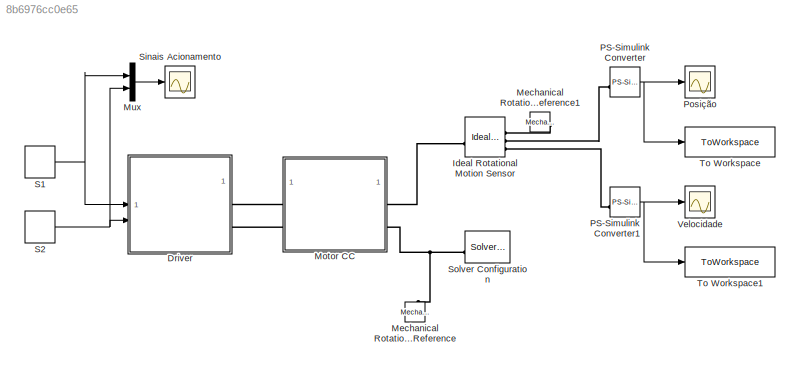
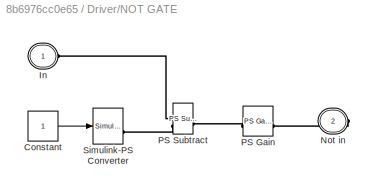
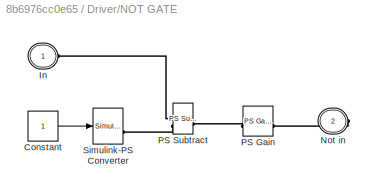
MODEL slx_8b6976cc0e65
KIND model
CONFIG AbsTol = auto
CONFIG EnableMultiTasking = on
CONFIG FixedStep = auto
CONFIG MaxStep = auto
CONFIG MinStep = auto
CONFIG RelTol = 1e-3
CONFIG SampleTimeConstraint = Unconstrained
CONFIG SolverName = ode45
CONFIG StartTime = 0.0
CONFIG StopTime = 10
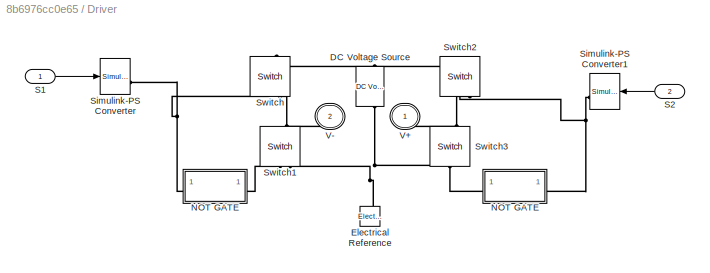
BLOCK [SubSystem] Driver
BLOCK [Reference] Driver/DC Voltage Source  REF=fl_lib/Electrical/Electrical Sources/DC Voltage Source
  NameLocation = right
  SourceBlock = fl_lib/Electrical/Electrical Sources/DC Voltage Source
  SourceType = DC Voltage Source
BLOCK [Reference] Driver/Electrical Reference  REF=fl_lib/Electrical/Electrical Elements/Electrical Reference
  NameLocation = right
  SourceBlock = fl_lib/Electrical/Electrical Elements/Electrical Reference
  SourceType = Electrical Reference
BLOCK [SubSystem] Driver/NOT  GATE
BLOCK [Constant] Driver/NOT  GATE/Constant
BLOCK [PMIOPort] Driver/NOT  GATE/In
  Side = Left
BLOCK [PMIOPort] Driver/NOT  GATE/Not in
  Port = 2
  Side = Right
BLOCK [Reference] Driver/NOT  GATE/PS Gain  REF=fl_ps_legacy_lib/Legacy Physical
Signals/Functions/PS Gain
  SourceBlock = fl_ps_legacy_lib/Legacy Physical\nSignals/Functions/PS Gain
  SourceType = PS Gain
BLOCK [Reference] Driver/NOT  GATE/PS Subtract  REF=fl_ps_legacy_lib/Legacy Physical
Signals/Functions/PS Subtract
  SourceBlock = fl_ps_legacy_lib/Legacy Physical\nSignals/Functions/PS Subtract
  SourceType = PS Subtract
BLOCK [Reference] Driver/NOT  GATE/Simulink-PS Converter  REF=nesl_utility/Simulink-PS
Converter
  SourceBlock = nesl_utility/Simulink-PS\nConverter
  SourceType = Simulink-PS\nConverter
BLOCK [SubSystem] Driver/NOT GATE
BLOCK [Constant] Driver/NOT GATE/Constant
BLOCK [PMIOPort] Driver/NOT GATE/In
  Side = Left
BLOCK [PMIOPort] Driver/NOT GATE/Not in
  Port = 2
  Side = Right
BLOCK [Reference] Driver/NOT GATE/PS Gain  REF=fl_ps_legacy_lib/Legacy Physical
Signals/Functions/PS Gain
  SourceBlock = fl_ps_legacy_lib/Legacy Physical\nSignals/Functions/PS Gain
  SourceType = PS Gain
BLOCK [Reference] Driver/NOT GATE/PS Subtract  REF=fl_ps_legacy_lib/Legacy Physical
Signals/Functions/PS Subtract
  SourceBlock = fl_ps_legacy_lib/Legacy Physical\nSignals/Functions/PS Subtract
  SourceType = PS Subtract
BLOCK [Reference] Driver/NOT GATE/Simulink-PS Converter  REF=nesl_utility/Simulink-PS
Converter
  SourceBlock = nesl_utility/Simulink-PS\nConverter
  SourceType = Simulink-PS\nConverter
BLOCK [Inport] Driver/S1
BLOCK [Inport] Driver/S2
  Port = 2
BLOCK [Reference] Driver/Simulink-PS Converter  REF=nesl_utility/Simulink-PS
Converter
  SourceBlock = nesl_utility/Simulink-PS\nConverter
  SourceType = Simulink-PS\nConverter
BLOCK [Reference] Driver/Simulink-PS Converter1  REF=nesl_utility/Simulink-PS
Converter
  SourceBlock = nesl_utility/Simulink-PS\nConverter
  SourceType = Simulink-PS\nConverter
BLOCK [Reference] Driver/Switch  REF=fl_lib/Electrical/Electrical Elements/Switch
  NameLocation = right
  SourceBlock = fl_lib/Electrical/Electrical Elements/Switch
  SourceType = Switch
BLOCK [Reference] Driver/Switch1  REF=fl_lib/Electrical/Electrical Elements/Switch
  NameLocation = right
  SourceBlock = fl_lib/Electrical/Electrical Elements/Switch
  SourceType = Switch
BLOCK [Reference] Driver/Switch2  REF=fl_lib/Electrical/Electrical Elements/Switch
  NameLocation = right
  SourceBlock = fl_lib/Electrical/Electrical Elements/Switch
  SourceType = Switch
BLOCK [Reference] Driver/Switch3  REF=fl_lib/Electrical/Electrical Elements/Switch
  NameLocation = right
  SourceBlock = fl_lib/Electrical/Electrical Elements/Switch
  SourceType = Switch
BLOCK [PMIOPort] Driver/V+
  Side = Right
BLOCK [PMIOPort] Driver/V-
  Port = 2
  Side = Right
BLOCK [Reference] Ideal Rotational Motion Sensor  REF=fl_lib/Mechanical/Mechanical Sensors/Ideal Rotational
Motion Sensor
  SourceBlock = fl_lib/Mechanical/Mechanical Sensors/Ideal Rotational\nMotion Sensor
  SourceType = Ideal Rotational\nMotion Sensor
BLOCK [Reference] Mechanical Rotational Reference  REF=fl_lib/Mechanical/Rotational Elements/Mechanical
Rotational Reference
  NameLocation = right
  SourceBlock = fl_lib/Mechanical/Rotational Elements/Mechanical\nRotational Reference
  SourceType = Mechanical\nRotational Reference
BLOCK [Reference] Mechanical Rotational Reference1  REF=fl_lib/Mechanical/Rotational Elements/Mechanical
Rotational Reference
  NameLocation = top
  SourceBlock = fl_lib/Mechanical/Rotational Elements/Mechanical\nRotational Reference
  SourceType = Mechanical\nRotational Reference
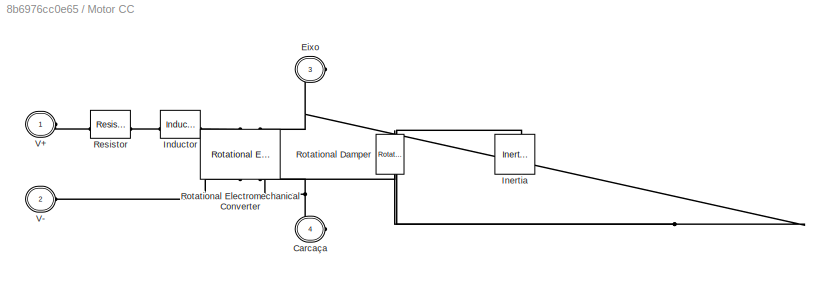
BLOCK [SubSystem] Motor CC
BLOCK [PMIOPort] Motor CC/Carcaça
  Port = 4
  Side = Right
BLOCK [PMIOPort] Motor CC/Eixo
  Port = 3
  Side = Right
BLOCK [Reference] Motor CC/Inductor  REF=fl_lib/Electrical/Electrical Elements/Inductor
  SourceBlock = fl_lib/Electrical/Electrical Elements/Inductor
  SourceType = Inductor
BLOCK [Reference] Motor CC/Inertia  REF=fl_lib/Mechanical/Rotational Elements/Inertia
  NameLocation = right
  SourceBlock = fl_lib/Mechanical/Rotational Elements/Inertia
  SourceType = Inertia
BLOCK [Reference] Motor CC/Resistor  REF=fl_lib/Electrical/Electrical Elements/Resistor
  SourceBlock = fl_lib/Electrical/Electrical Elements/Resistor
  SourceType = Resistor
BLOCK [Reference] Motor CC/Rotational Damper  REF=fl_lib/Mechanical/Rotational Elements/Rotational Damper
  NameLocation = right
  SourceBlock = fl_lib/Mechanical/Rotational Elements/Rotational Damper
  SourceType = Rotational Damper
BLOCK [Reference] Motor CC/Rotational Electromechanical Converter  REF=fl_lib/Electrical/Electrical Elements/Rotational
Electromechanical
Converter
  NameLocation = right
  SourceBlock = fl_lib/Electrical/Electrical Elements/Rotational\nElectromechanical\nConverter
  SourceType = Rotational\nElectromechanical\nConverter
BLOCK [PMIOPort] Motor CC/V+
  Side = Left
BLOCK [PMIOPort] Motor CC/V-
  Port = 2
  Side = Left
BLOCK [Mux] Mux
  DisplayOption = bar
  Inputs = 2
BLOCK [Reference] PS-Simulink Converter  REF=nesl_utility/PS-Simulink
Converter
  SourceBlock = nesl_utility/PS-Simulink\nConverter
  SourceType = PS-Simulink\nConverter
BLOCK [Reference] PS-Simulink Converter1  REF=nesl_utility/PS-Simulink
Converter
  SourceBlock = nesl_utility/PS-Simulink\nConverter
  SourceType = PS-Simulink\nConverter
BLOCK [Scope] Posição
  Floating = off
  NumInputPorts = 1
  ScopeSpecificationString = Simulink.scopes.TimeScopeBlockCfg('CurrentConfiguration', extmgr.ConfigurationSet(extmgr.Configuration('Core','General UI',true),extmgr.Configuration('Core','Source UI',true),extmgr.Configuration('Sources','WiredSimulink',true,'DataLoggingSaveFormat','Array','DataLoggingDecimation','1','DataLoggingDecimateData',true),extmgr.Configuration('Visuals','Time Domain',true,'SerializedDisplays',{struct('M...<+1661ch>
BLOCK [DiscretePulseGenerator] S1
  Period = 1
  PhaseDelay = 0.5
  PulseType = Time based
  PulseWidth = 50
BLOCK [DiscretePulseGenerator] S2
  Period = 1
  PulseType = Time based
  PulseWidth = 50
BLOCK [Scope] Sinais Acionamento
  Floating = off
  NumInputPorts = 1
  ScopeSpecificationString = Simulink.scopes.TimeScopeBlockCfg('CurrentConfiguration', extmgr.ConfigurationSet(extmgr.Configuration('Core','General UI',true),extmgr.Configuration('Core','Source UI',true),extmgr.Configuration('Sources','WiredSimulink',true,'DataLoggingVariableName','ScopeData2','DataLoggingSaveFormat','Array','DataLoggingDecimation','1','DataLoggingDecimateData',true),extmgr.Configuration('Visuals','Time Domai...<+1742ch>
BLOCK [Reference] Solver Configuration  REF=nesl_utility/Solver
Configuration
  SourceBlock = nesl_utility/Solver\nConfiguration
  SourceType = Solver\nConfiguration
BLOCK [ToWorkspace] To Workspace
  FixptAsFi = on
  MaxDataPoints = inf
  SampleTime = -1
  SaveFormat = Timeseries
  VariableName = sim_pos
BLOCK [ToWorkspace] To Workspace1
  FixptAsFi = on
  MaxDataPoints = inf
  SampleTime = -1
  SaveFormat = Timeseries
  VariableName = sim_vel
BLOCK [Scope] Velocidade
  Floating = off
  NumInputPorts = 1
  ScopeSpecificationString = Simulink.scopes.TimeScopeBlockCfg('CurrentConfiguration', extmgr.ConfigurationSet(extmgr.Configuration('Core','General UI',true),extmgr.Configuration('Core','Source UI',true),extmgr.Configuration('Sources','WiredSimulink',true,'DataLoggingVariableName','ScopeData1','DataLoggingSaveFormat','Array','DataLoggingDecimation','1','DataLoggingDecimateData',true),extmgr.Configuration('Visuals','Time Domai...<+1681ch>
LINE Driver/NOT  GATE/Constant:1 -> Driver/NOT  GATE/Simulink-PS Converter:1
LINE Driver/NOT GATE/Constant:1 -> Driver/NOT GATE/Simulink-PS Converter:1
LINE Driver/S1:1 -> Driver/Simulink-PS Converter:1
LINE Driver/S2:1 -> Driver/Simulink-PS Converter1:1
LINE Mux:1 -> Sinais Acionamento:1
NET PS-Simulink Converter1:1 -> To Workspace1:1, Velocidade:1
NET PS-Simulink Converter:1 -> Posição:1, To Workspace:1
NET S1:1 -> Driver:1, Mux:1
NET S2:1 -> Driver:2, Mux:2
PNET net1: Driver/DC Voltage Source:LConn1 -- Driver/Switch2:LConn1 -- Driver/Switch:LConn1
PNET net2: Driver/DC Voltage Source:RConn1 -- Driver/Electrical Reference:LConn1 -- Driver/Switch1:RConn2 -- Driver/Switch3:RConn2
PLINE Driver/NOT  GATE/In:RConn1 -- Driver/NOT  GATE/PS Subtract:LConn1
PLINE Driver/NOT  GATE/Not in:RConn1 -- Driver/NOT  GATE/PS Gain:RConn1
PLINE Driver/NOT  GATE/PS Gain:LConn1 -- Driver/NOT  GATE/PS Subtract:RConn1
PLINE Driver/NOT  GATE/PS Subtract:LConn2 -- Driver/NOT  GATE/Simulink-PS Converter:RConn1
PNET net3: Driver/NOT  GATE:LConn1 -- Driver/Simulink-PS Converter1:RConn1 -- Driver/Switch2:RConn1
PLINE Driver/NOT  GATE:RConn1 -- Driver/Switch3:RConn1
PLINE Driver/NOT GATE/In:RConn1 -- Driver/NOT GATE/PS Subtract:LConn1
PLINE Driver/NOT GATE/Not in:RConn1 -- Driver/NOT GATE/PS Gain:RConn1
PLINE Driver/NOT GATE/PS Gain:LConn1 -- Driver/NOT GATE/PS Subtract:RConn1
PLINE Driver/NOT GATE/PS Subtract:LConn2 -- Driver/NOT GATE/Simulink-PS Converter:RConn1
PNET net4: Driver/NOT GATE:LConn1 -- Driver/Simulink-PS Converter:RConn1 -- Driver/Switch:RConn1
PLINE Driver/NOT GATE:RConn1 -- Driver/Switch1:RConn1
PNET net5: Driver/Switch1:LConn1 -- Driver/Switch:RConn2 -- Driver/V-:RConn1
PNET net6: Driver/Switch2:RConn2 -- Driver/Switch3:LConn1 -- Driver/V+:RConn1
PLINE Driver:RConn1 -- Motor CC:LConn1
PLINE Driver:RConn2 -- Motor CC:LConn2
PLINE Ideal Rotational Motion Sensor:LConn1 -- Motor CC:RConn1
PLINE Ideal Rotational Motion Sensor:RConn1 -- Mechanical Rotational Reference1:LConn1
PLINE Ideal Rotational Motion Sensor:RConn2 -- PS-Simulink Converter:LConn1
PLINE Ideal Rotational Motion Sensor:RConn3 -- PS-Simulink Converter1:LConn1
PNET net7: Mechanical Rotational Reference:LConn1 -- Motor CC:RConn2 -- Solver Configuration:RConn1
PNET net8: Motor CC/Carcaça:RConn1 -- Motor CC/Rotational Damper:RConn1 -- Motor CC/Rotational Electromechanical Converter:RConn2
PNET net9: Motor CC/Eixo:RConn1 -- Motor CC/Inertia:LConn1 -- Motor CC/Rotational Damper:LConn1 -- Motor CC/Rotational Electromechanical Converter:LConn2
PLINE Motor CC/Inductor:LConn1 -- Motor CC/Resistor:RConn1
PLINE Motor CC/Inductor:RConn1 -- Motor CC/Rotational Electromechanical Converter:LConn1
PLINE Motor CC/Resistor:LConn1 -- Motor CC/V+:RConn1
PLINE Motor CC/Rotational Electromechanical Converter:RConn1 -- Motor CC/V-:RConn1
note: NET lines group one-source signal fan-out (src -> all destinations, sorted); 1:1 wires keep LINE; PNET lines group multi-terminal physical nets as a canonical sorted terminal list (undirected conserving connections); 2-terminal nets keep the pairwise PLINE form
